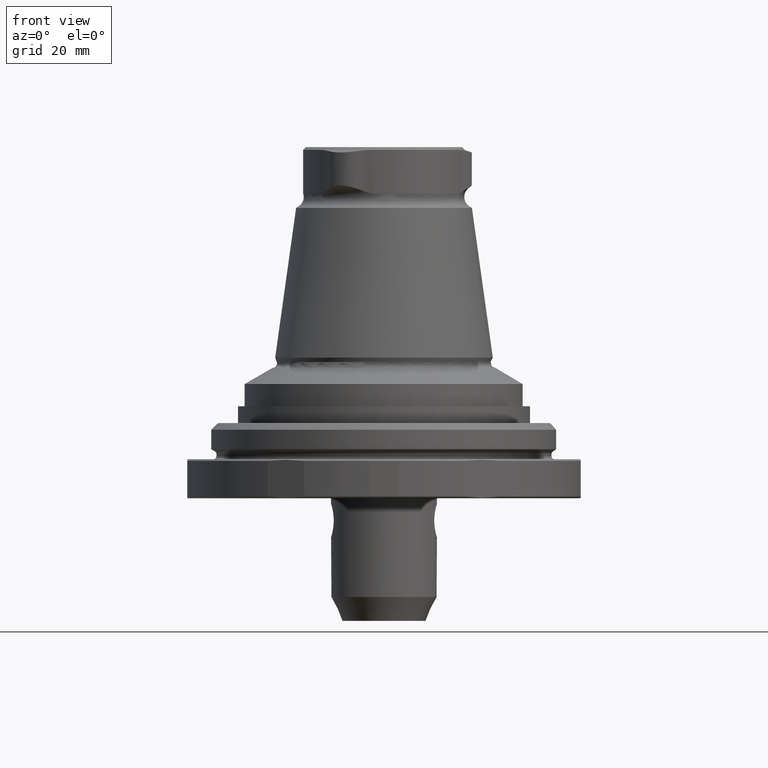
[diagram: clean part render]
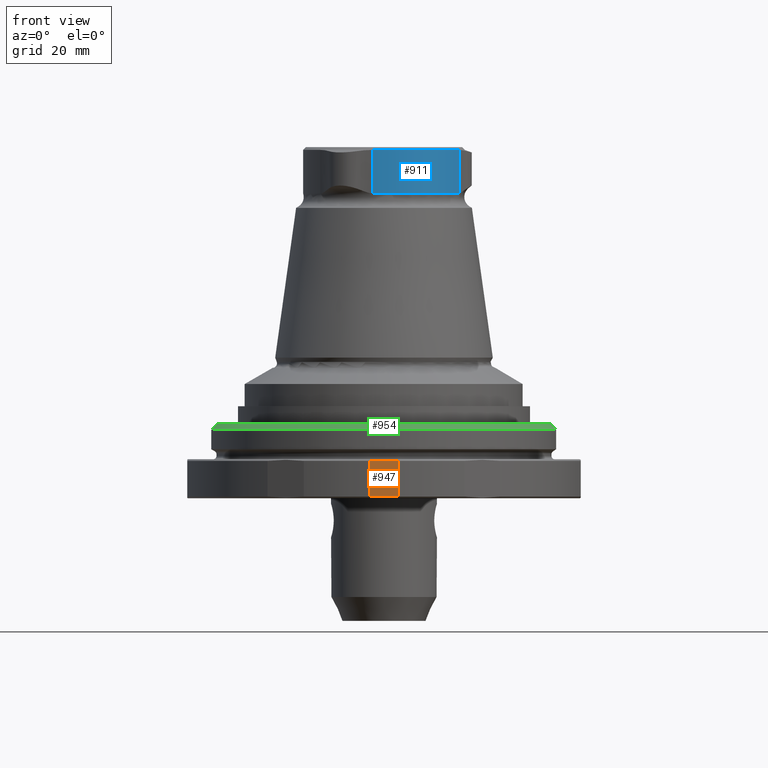
[diagram: same view with three faces highlighted in distinct colors, each labeled with its STEP entity id]
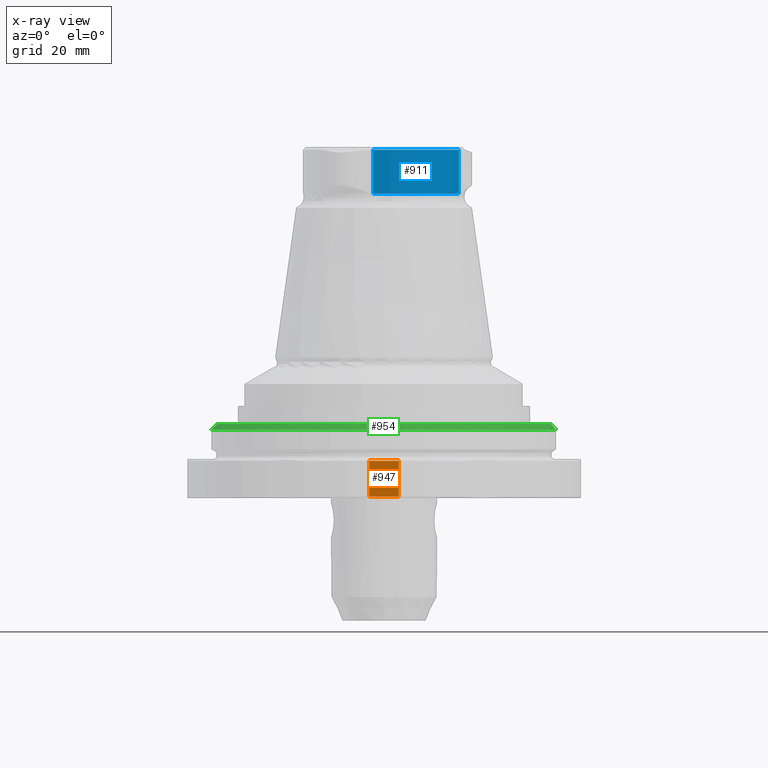
[diagram: x-ray of the same camera — body ghosted, the three highlighted faces saturated]
A machine part, front view with three faces highlighted in distinct colors.
The next image is the same camera in x-ray (body ghosted, the three faces saturated) — at least one of them is partly hidden behind the body in this view.
Their STEP definitions:

[orange] entity #947 — the highlighted planar face has unit normal (0, -1, 0).
#39=LINE('',#1688,#67);
#51=LINE('',#1766,#79);
#67=VECTOR('',#1259,1000.);
#79=VECTOR('',#1311,1000.);
#108=PLANE('',#1070);
#388=ORIENTED_EDGE('',*,*,#489,.T.);
#389=ORIENTED_EDGE('',*,*,#504,.T.);
#390=ORIENTED_EDGE('',*,*,#507,.T.);
#391=ORIENTED_EDGE('',*,*,#531,.T.);
#489=EDGE_CURVE('',#596,#597,#661,.T.);
#504=EDGE_CURVE('',#597,#610,#39,.T.);
#507=EDGE_CURVE('',#610,#612,#669,.F.);
#531=EDGE_CURVE('',#612,#596,#51,.F.);
#596=VERTEX_POINT('',#1638);
#597=VERTEX_POINT('',#1639);
#610=VERTEX_POINT('',#1689);
#612=VERTEX_POINT('',#1698);
#661=B_SPLINE_CURVE_WITH_KNOTS('',3,(#1634,#1635,#1636,#1637),
 .UNSPECIFIED.,.F.,.F.,(4,4),(0.0166930730457486,0.0219976517487452),
 .UNSPECIFIED.);
#669=B_SPLINE_CURVE_WITH_KNOTS('',3,(#1694,#1695,#1696,#1697),
 .UNSPECIFIED.,.F.,.F.,(4,4),(0.0166930730457489,0.0219976517487454),
 .UNSPECIFIED.);
#745=EDGE_LOOP('',(#388,#389,#390,#391));
#841=FACE_BOUND('',#745,.T.);
#947=ADVANCED_FACE('',(#841),#108,.T.);
#1070=AXIS2_PLACEMENT_3D('',#1769,#1315,#1316);
#1259=DIRECTION('',(-5.47430718319515E-16,-4.76420379815137E-18,-1.));
#1311=DIRECTION('',(-5.47430718319515E-16,-4.76420379815137E-18,-1.));
#1315=DIRECTION('',(8.04911692853238E-16,-1.,4.76423358437974E-18));
#1316=DIRECTION('',(1.,-9.15933995315755E-16,-5.47430716006892E-16));
#1634=CARTESIAN_POINT('',(2.66270539113884,-35.4000000000001,-1.3));
#1635=CARTESIAN_POINT('',(0.884996935709354,-35.4000000000001,-1.16666158061561));
#1636=CARTESIAN_POINT('',(-0.890132562821881,-35.4000000000001,-1.16704678236206));
#1637=CARTESIAN_POINT('',(-2.66270539113897,-35.4000000000001,-1.29999999999999));
#1638=CARTESIAN_POINT('',(2.66270539113884,-35.4000000000001,-1.29999999999999));
#1639=CARTESIAN_POINT('',(-2.66270539113896,-35.4000000000001,-1.29999999999999));
#1688=CARTESIAN_POINT('',(-2.66270539113896,-35.4000000000001,-0.999999999999988));
#1689=CARTESIAN_POINT('',(-2.66270539113897,-35.4000000000001,-7.69999999999999));
#1694=CARTESIAN_POINT('',(2.66270539113884,-35.4000000000001,-7.69999999999999));
#1695=CARTESIAN_POINT('',(0.884996935709352,-35.4000000000001,-7.83333841938436));
#1696=CARTESIAN_POINT('',(-0.890132562821883,-35.4000000000001,-7.83295321763791));
#1697=CARTESIAN_POINT('',(-2.66270539113897,-35.4000000000001,-7.69999999999999));
#1698=CARTESIAN_POINT('',(2.66270539113884,-35.4000000000001,-7.7));
#1766=CARTESIAN_POINT('',(2.66270539113884,-35.4000000000001,-0.99999999999999));
#1769=CARTESIAN_POINT('',(-6.23330167050492E-14,-35.4000000000001,-4.49999999999998));

[blue] entity #911 — the highlighted cylindrical surface (partial cylindrical patch) has radius 14.5 mm, axis along (0, 0, 1).
#29=LINE('',#1508,#57);
#30=LINE('',#1516,#58);
#57=VECTOR('',#1159,1000.);
#58=VECTOR('',#1162,1000.);
#124=CIRCLE('',#994,14.5);
#128=CIRCLE('',#1005,14.5);
#219=ORIENTED_EDGE('',*,*,#454,.T.);
#220=ORIENTED_EDGE('',*,*,#437,.T.);
#221=ORIENTED_EDGE('',*,*,#452,.F.);
#222=ORIENTED_EDGE('',*,*,#455,.F.);
#437=EDGE_CURVE('',#557,#552,#124,.T.);
#452=EDGE_CURVE('',#570,#552,#29,.T.);
#454=EDGE_CURVE('',#571,#557,#30,.T.);
#455=EDGE_CURVE('',#571,#570,#128,.T.);
#552=VERTEX_POINT('',#1413);
#557=VERTEX_POINT('',#1433);
#570=VERTEX_POINT('',#1509);
#571=VERTEX_POINT('',#1517);
#698=EDGE_LOOP('',(#219,#220,#221,#222));
#794=FACE_BOUND('',#698,.T.);
#874=CYLINDRICAL_SURFACE('',#1004,14.5);
#911=ADVANCED_FACE('',(#794),#874,.T.);
#994=AXIS2_PLACEMENT_3D('',#1454,#1135,#1136);
#1004=AXIS2_PLACEMENT_3D('',#1515,#1160,#1161);
#1005=AXIS2_PLACEMENT_3D('',#1518,#1163,#1164);
#1135=DIRECTION('',(-4.38328612912168E-16,-8.51929322185263E-24,-1.));
#1136=DIRECTION('',(-1.,9.77164313006873E-16,4.38328610599545E-16));
#1159=DIRECTION('',(5.47430718319515E-16,8.51929311524195E-24,1.));
#1160=DIRECTION('',(5.47430718319515E-16,8.51929311524195E-24,1.));
#1161=DIRECTION('',(1.,-9.77164313006873E-16,-5.47430716006892E-16));
#1162=DIRECTION('',(5.47430718319515E-16,8.51929311524195E-24,1.));
#1163=DIRECTION('',(-4.38328612912168E-16,-8.51929322185263E-24,-1.));
#1164=DIRECTION('',(-1.,9.77164313006873E-16,4.38328610599545E-16));
#1413=CARTESIAN_POINT('',(-2.01217892083197,-14.3597052891257,54.5));
#1433=CARTESIAN_POINT('',(13.4419590316585,-5.43725458216212,54.499999999999));
#1454=CARTESIAN_POINT('',(-6.38744814161624E-14,-9.81645347040286E-14,54.5));
#1508=CARTESIAN_POINT('',(-2.01217892083203,-14.3597052891257,-42.9132268899356));
#1509=CARTESIAN_POINT('',(-2.01217892083198,-14.3597052891257,46.6780044888626));
#1515=CARTESIAN_POINT('',(7.25760380047844E-13,-5.87021120535653E-13,-42.9132268899356));
#1516=CARTESIAN_POINT('',(13.4419590316584,-5.43725458216212,-42.9132268899356));
#1517=CARTESIAN_POINT('',(13.4419590316585,-5.43725458216212,46.6780044888644));
#1518=CARTESIAN_POINT('',(-6.82790461535123E-14,-9.81645347706665E-14,46.6780044888626));

[green] entity #954 — the highlighted conical surface has half-angle 45 deg.
#95=CONICAL_SURFACE('',#1083,29.9757350979542,0.785398163397448);
#163=CIRCLE('',#1082,29.9757350979542);
#164=CIRCLE('',#1084,31.);
#404=ORIENTED_EDGE('',*,*,#539,.F.);
#405=ORIENTED_EDGE('',*,*,#538,.T.);
#538=EDGE_CURVE('',#629,#629,#163,.T.);
#539=EDGE_CURVE('',#630,#630,#164,.T.);
#629=VERTEX_POINT('',#1787);
#630=VERTEX_POINT('',#1790);
#758=EDGE_LOOP('',(#404));
#759=EDGE_LOOP('',(#405));
#854=FACE_BOUND('',#758,.T.);
#855=FACE_BOUND('',#759,.T.);
#954=ADVANCED_FACE('',(#854,#855),#95,.T.);
#1082=AXIS2_PLACEMENT_3D('',#1786,#1339,#1340);
#1083=AXIS2_PLACEMENT_3D('',#1788,#1341,#1342);
#1084=AXIS2_PLACEMENT_3D('',#1789,#1343,#1344);
#1339=DIRECTION('',(-5.47430718319515E-16,-4.76420379815137E-18,-1.));
#1340=DIRECTION('',(-1.,9.15933995315755E-16,5.47430716006892E-16));
#1341=DIRECTION('',(-5.47430718319515E-16,-4.76420379815137E-18,-1.));
#1342=DIRECTION('',(-1.,9.15933995315755E-16,5.47430716006892E-16));
#1343=DIRECTION('',(-5.47430718319515E-16,-4.76420379815137E-18,-1.));
#1344=DIRECTION('',(-1.,9.15933995315755E-16,5.47430716006892E-16));
#1786=CARTESIAN_POINT('',(-8.54487862397657E-14,-9.81653723592951E-14,5.32426490204586));
#1787=CARTESIAN_POINT('',(-29.9757350979542,-7.07095775484993E-14,5.32426490204587));
#1788=CARTESIAN_POINT('',(-8.54487862397657E-14,-9.81653723592951E-14,5.32426490204586));
#1789=CARTESIAN_POINT('',(-8.60095003108421E-14,-9.81702521660317E-14,4.30000000000001));
#1790=CARTESIAN_POINT('',(-31.0000000000001,-6.97762983112434E-14,4.30000000000003));